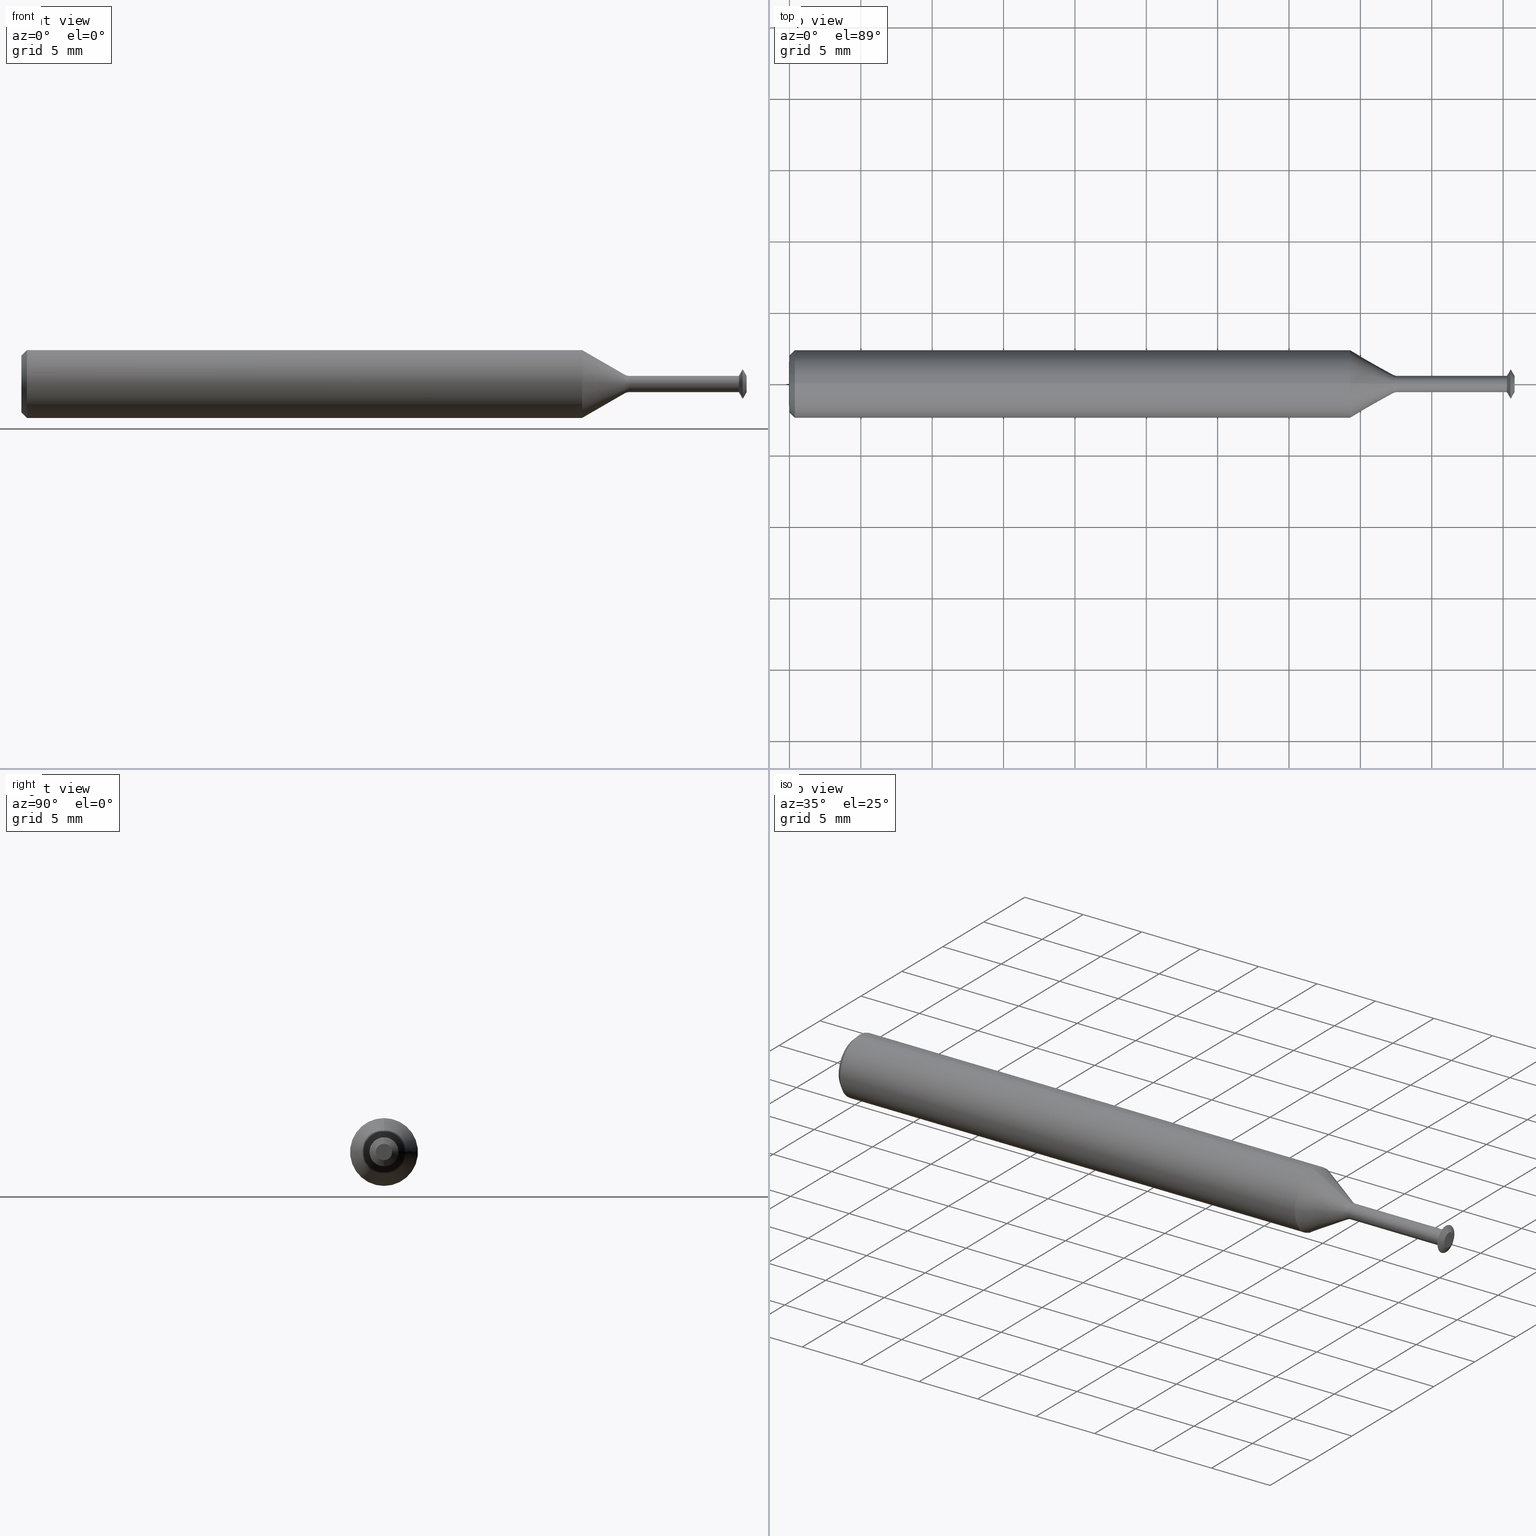
[diagram: canonical four-view strip — front | top / right | iso, engineering-drawing reading convention]
A machine part, canonical four-view strip (front | top / right | iso — engineering-drawing reading convention). The complete STEP part file that produces these views, byte-faithful:
ISO-10303-21;
HEADER;
FILE_DESCRIPTION (( 'STEP AP214' ),
    '1' );
FILE_NAME ('SPTM080L.STEP',
    '2019-04-02T22:13:54',
    ( '' ),
    ( '' ),
    'SwSTEP 2.0',
    'SolidWorks 2018',
    '' );
FILE_SCHEMA (( 'AUTOMOTIVE_DESIGN' ));
ENDSEC;

DATA;
#1 = VECTOR ( 'NONE', #210, 39.37007874015748143 ) ;
#2 = DIRECTION ( 'NONE',  ( 0.0000000000000000000, 0.0000000000000000000, 1.000000000000000000 ) ) ;
#3 = VERTEX_POINT ( 'NONE', #347 ) ;
#4 = VERTEX_POINT ( 'NONE', #109 ) ;
#5 = DIRECTION ( 'NONE',  ( -1.000000000000000000, -0.0000000000000000000, -0.0000000000000000000 ) ) ;
#6 = EDGE_CURVE ( 'NONE', #55, #3, #444, .T. ) ;
#7 = VERTEX_POINT ( 'NONE', #446 ) ;
#8 = AXIS2_PLACEMENT_3D ( 'NONE', #179, #207, #501 ) ;
#9 = VECTOR ( 'NONE', #398, 39.37007874015748143 ) ;
#10 = CYLINDRICAL_SURFACE ( 'NONE', #240, 0.02249999999999965916 ) ;
#11 = EDGE_CURVE ( 'NONE', #7, #259, #232, .T. ) ;
#12 = DIRECTION ( 'NONE',  ( 0.0000000000000000000, 0.0000000000000000000, 1.000000000000000000 ) ) ;
#13 = CARTESIAN_POINT ( 'NONE',  ( 2.000000000000000000, 3.827021247335434091E-18, -0.02249999999999964181 ) ) ;
#14 = DIRECTION ( 'NONE',  ( 0.0000000000000000000, 0.0000000000000000000, -1.000000000000000000 ) ) ;
#15 = AXIS2_PLACEMENT_3D ( 'NONE', #61, #472, #454 ) ;
#16 = DIRECTION ( 'NONE',  ( -1.000000000000000000, -0.0000000000000000000, -0.0000000000000000000 ) ) ;
#17 = FACE_OUTER_BOUND ( 'NONE', #399, .T. ) ;
#18 =( NAMED_UNIT ( * ) PLANE_ANGLE_UNIT ( ) SI_UNIT ( $, .RADIAN. ) );
#19 = ORIENTED_EDGE ( 'NONE', *, *, #156, .F. ) ;
#20 = SURFACE_STYLE_FILL_AREA ( #412 ) ;
#21 = VECTOR ( 'NONE', #276, 39.37007874015748143 ) ;
#22 = DIRECTION ( 'NONE',  ( 1.000000000000000000, 0.0000000000000000000, 0.0000000000000000000 ) ) ;
#23 = DIRECTION ( 'NONE',  ( -1.000000000000000000, -0.0000000000000000000, -0.0000000000000000000 ) ) ;
#24 = CARTESIAN_POINT ( 'NONE',  ( 2.000000000000000000, 0.0000000000000000000, 0.0000000000000000000 ) ) ;
#25 = CARTESIAN_POINT ( 'NONE',  ( 0.0000000000000000000, 0.0000000000000000000, 0.02249999999999965916 ) ) ;
#26 = ORIENTED_EDGE ( 'NONE', *, *, #29, .F. ) ;
#27 = DIMENSIONAL_EXPONENTS ( 1.000000000000000000, 0.0000000000000000000, 0.0000000000000000000, 0.0000000000000000000, 0.0000000000000000000, 0.0000000000000000000, 0.0000000000000000000 ) ;
#28 = DIRECTION ( 'NONE',  ( 0.0000000000000000000, 0.0000000000000000000, 1.000000000000000000 ) ) ;
#29 = EDGE_CURVE ( 'NONE', #370, #386, #484, .T. ) ;
#30 = AXIS2_PLACEMENT_3D ( 'NONE', #24, #73, #291 ) ;
#31 = FACE_OUTER_BOUND ( 'NONE', #262, .T. ) ;
#32 = CYLINDRICAL_SURFACE ( 'NONE', #56, 0.02249999999999965916 ) ;
#33 = CARTESIAN_POINT ( 'NONE',  ( 1.988957364759241564, 0.0000000000000000000, 0.0000000000000000000 ) ) ;
#34 = ADVANCED_FACE ( 'NONE', ( #185 ), #251, .F. ) ;
#35 = CARTESIAN_POINT ( 'NONE',  ( 1.676156094570019572, 0.0000000000000000000, 0.0000000000000000000 ) ) ;
#36 = EDGE_LOOP ( 'NONE', ( #368, #400, #151, #465 ) ) ;
#37 = CARTESIAN_POINT ( 'NONE',  ( 0.0000000000000000000, 0.0000000000000000000, 0.0000000000000000000 ) ) ;
#38 = ORIENTED_EDGE ( 'NONE', *, *, #314, .F. ) ;
#39 = DIRECTION ( 'NONE',  ( -1.000000000000000000, 0.0000000000000000000, -0.0000000000000000000 ) ) ;
#40 = ADVANCED_FACE ( 'NONE', ( #385 ), #490, .T. ) ;
#41 = EDGE_CURVE ( 'NONE', #259, #194, #362, .T. ) ;
#42 = DIRECTION ( 'NONE',  ( -0.8660254037844379305, 0.0000000000000000000, 0.5000000000000009992 ) ) ;
#43 = SURFACE_SIDE_STYLE ('',( #58 ) ) ;
#44 = VECTOR ( 'NONE', #488, 39.37007874015748143 ) ;
#45 = DIRECTION ( 'NONE',  ( -1.000000000000000000, -0.0000000000000000000, -0.0000000000000000000 ) ) ;
#46 = EDGE_CURVE ( 'NONE', #55, #164, #116, .T. ) ;
#47 = ADVANCED_FACE ( 'NONE', ( #410 ), #152, .F. ) ;
#48 = DIRECTION ( 'NONE',  ( -0.0000000000000000000, 1.000000000000000000, 1.224646799147353207E-16 ) ) ;
#49 = DIRECTION ( 'NONE',  ( -1.000000000000000000, -0.0000000000000000000, -0.0000000000000000000 ) ) ;
#50 = AXIS2_PLACEMENT_3D ( 'NONE', #256, #57, #203 ) ;
#51 = DIRECTION ( 'NONE',  ( 0.0000000000000000000, 0.0000000000000000000, 1.000000000000000000 ) ) ;
#52 = DIRECTION ( 'NONE',  ( 0.0000000000000000000, 0.0000000000000000000, 1.000000000000000000 ) ) ;
#53 = EDGE_CURVE ( 'NONE', #386, #476, #171, .T. ) ;
#54 = DIRECTION ( 'NONE',  ( -1.000000000000000000, -0.0000000000000000000, -0.0000000000000000000 ) ) ;
#55 = VERTEX_POINT ( 'NONE', #114 ) ;
#56 = AXIS2_PLACEMENT_3D ( 'NONE', #37, #192, #341 ) ;
#57 = DIRECTION ( 'NONE',  ( 1.000000000000000000, 0.0000000000000000000, 0.0000000000000000000 ) ) ;
#58 = SURFACE_STYLE_FILL_AREA ( #335 ) ;
#59 = DIRECTION ( 'NONE',  ( 0.4977310399126141371, 1.062174661273175141E-16, 0.8673314314075719622 ) ) ;
#60 = DIRECTION ( 'NONE',  ( 0.0000000000000000000, 0.0000000000000000000, 1.000000000000000000 ) ) ;
#61 = CARTESIAN_POINT ( 'NONE',  ( 0.0000000000000000000, 0.0000000000000000000, 0.0000000000000000000 ) ) ;
#62 = CYLINDRICAL_SURFACE ( 'NONE', #8, 0.03999999999999963307 ) ;
#63 = ADVANCED_FACE ( 'NONE', ( #328 ), #62, .T. ) ;
#64 = EDGE_CURVE ( 'NONE', #348, #193, #478, .T. ) ;
#65 = ADVANCED_FACE ( 'NONE', ( #183 ), #377, .T. ) ;
#66 = CARTESIAN_POINT ( 'NONE',  ( 0.0000000000000000000, 0.0000000000000000000, 0.03999999999999963307 ) ) ;
#67 = ADVANCED_FACE ( 'NONE', ( #352 ), #467, .T. ) ;
#68 = DIRECTION ( 'NONE',  ( -1.000000000000000000, -0.0000000000000000000, -0.0000000000000000000 ) ) ;
#69 = DIRECTION ( 'NONE',  ( -1.000000000000000000, -0.0000000000000000000, -0.0000000000000000000 ) ) ;
#70 = ADVANCED_FACE ( 'NONE', ( #242 ), #32, .T. ) ;
#71 = DIRECTION ( 'NONE',  ( 1.000000000000000000, 0.0000000000000000000, 0.0000000000000000000 ) ) ;
#72 = LINE ( 'NONE', #217, #1 ) ;
#73 = DIRECTION ( 'NONE',  ( -1.000000000000000000, -0.0000000000000000000, -0.0000000000000000000 ) ) ;
#74 = ORIENTED_EDGE ( 'NONE', *, *, #53, .T. ) ;
#75 = LINE ( 'NONE', #402, #44 ) ;
#76 = AXIS2_PLACEMENT_3D ( 'NONE', #440, #271, #265 ) ;
#77 = ORIENTED_EDGE ( 'NONE', *, *, #418, .F. ) ;
#78 =( CONVERSION_BASED_UNIT ( 'INCH', #387 ) LENGTH_UNIT ( ) NAMED_UNIT ( #27 ) );
#79 = TOROIDAL_SURFACE ( 'NONE', #138, 0.04749999999999963279, 0.02499999999999994588 ) ;
#80 = MANIFOLD_SOLID_BREP ( 'F520BA77-B374-43fe-96ED-109354F2E196-GAAFaceID9', #81 ) ;
#81 = CLOSED_SHELL ( 'NONE', ( #414, #67, #65, #34, #105, #106, #63, #123, #47, #129, #40, #82, #70, #99, #86, #459, #244, #128 ) ) ;
#82 = ADVANCED_FACE ( 'NONE', ( #31 ), #191, .T. ) ;
#83 = EDGE_CURVE ( 'NONE', #4, #370, #332, .T. ) ;
#84 = CIRCLE ( 'NONE', #429, 0.09360000000000001652 ) ;
#85 = AXIS2_PLACEMENT_3D ( 'NONE', #460, #45, #12 ) ;
#86 = ADVANCED_FACE ( 'NONE', ( #308 ), #483, .T. ) ;
#87 = EDGE_LOOP ( 'NONE', ( #263, #396, #107, #130 ) ) ;
#88 = CARTESIAN_POINT ( 'NONE',  ( 0.0000000000000000000, 0.0000000000000000000, 0.0000000000000000000 ) ) ;
#89 = APPLICATION_CONTEXT ( 'automotive_design' ) ;
#90 = DIRECTION ( 'NONE',  ( -1.000000000000000000, -0.0000000000000000000, -0.0000000000000000000 ) ) ;
#91 = AXIS2_PLACEMENT_3D ( 'NONE', #260, #254, #391 ) ;
#92 = DIMENSIONAL_EXPONENTS ( 1.000000000000000000, 0.0000000000000000000, 0.0000000000000000000, 0.0000000000000000000, 0.0000000000000000000, 0.0000000000000000000, 0.0000000000000000000 ) ;
#93 = ORIENTED_EDGE ( 'NONE', *, *, #135, .T. ) ;
#94 = DIRECTION ( 'NONE',  ( 0.0000000000000000000, 0.0000000000000000000, 1.000000000000000000 ) ) ;
#95 = CIRCLE ( 'NONE', #325, 0.03999999999999963307 ) ;
#96 = DIMENSIONAL_EXPONENTS ( 1.000000000000000000, 0.0000000000000000000, 0.0000000000000000000, 0.0000000000000000000, 0.0000000000000000000, 0.0000000000000000000, 0.0000000000000000000 ) ;
#97 = DIRECTION ( 'NONE',  ( 0.0000000000000000000, -1.224646799147353207E-16, 1.000000000000000000 ) ) ;
#98 = ORIENTED_EDGE ( 'NONE', *, *, #200, .T. ) ;
#99 = ADVANCED_FACE ( 'NONE', ( #249 ), #79, .F. ) ;
#100 = CIRCLE ( 'NONE', #357, 0.03999999999999963307 ) ;
#101 = APPLICATION_PROTOCOL_DEFINITION ( 'draft international standard', 'automotive_design', 1998, #295 ) ;
#102 = UNCERTAINTY_MEASURE_WITH_UNIT (LENGTH_MEASURE( 1.000000000000000082E-05 ), #78, 'distance_accuracy_value', 'NONE');
#103 = DIRECTION ( 'NONE',  ( -1.000000000000000000, -0.0000000000000000000, -0.0000000000000000000 ) ) ;
#104 = EDGE_CURVE ( 'NONE', #259, #7, #286, .T. ) ;
#105 = ADVANCED_FACE ( 'NONE', ( #294 ), #10, .T. ) ;
#106 = ADVANCED_FACE ( 'NONE', ( #17 ), #274, .T. ) ;
#107 = ORIENTED_EDGE ( 'NONE', *, *, #64, .T. ) ;
#108 = DIRECTION ( 'NONE',  ( 0.7071067811865551223, 8.659560562354836716E-17, 0.7071067811865398012 ) ) ;
#109 = CARTESIAN_POINT ( 'NONE',  ( 2.000000000000000000, 0.0000000000000000000, 0.02249999999999964181 ) ) ;
#110 = PRESENTATION_LAYER_ASSIGNMENT (  '', '', ( #278 ) ) ;
#111 = EDGE_LOOP ( 'NONE', ( #137, #279 ) ) ;
#112 = CARTESIAN_POINT ( 'NONE',  ( 1.988957364759241564, 4.898587196589368085E-18, -0.03999999999999963307 ) ) ;
#113 = CIRCLE ( 'NONE', #170, 0.07860000000000036402 ) ;
#114 = CARTESIAN_POINT ( 'NONE',  ( 1.663656094570019617, 0.0000000000000000000, 0.02584936490538871506 ) ) ;
#115 = EDGE_CURVE ( 'NONE', #353, #164, #383, .T. ) ;
#116 = CIRCLE ( 'NONE', #91, 0.02499999999999994588 ) ;
#117 = DIRECTION ( 'NONE',  ( 0.0000000000000000000, 0.0000000000000000000, 1.000000000000000000 ) ) ;
#118 = ORIENTED_EDGE ( 'NONE', *, *, #314, .T. ) ;
#119 = ORIENTED_EDGE ( 'NONE', *, *, #182, .T. ) ;
#120 = CARTESIAN_POINT ( 'NONE',  ( 1.978914729518483684, 0.0000000000000000000, 0.0000000000000000000 ) ) ;
#121 = AXIS2_PLACEMENT_3D ( 'NONE', #122, #346, #303 ) ;
#122 = CARTESIAN_POINT ( 'NONE',  ( 1.978914729518483684, 0.0000000000000000000, 0.0000000000000000000 ) ) ;
#123 = ADVANCED_FACE ( 'NONE', ( #326 ), #401, .T. ) ;
#124 = PRESENTATION_STYLE_ASSIGNMENT (( #125 ) ) ;
#125 = SURFACE_STYLE_USAGE ( .BOTH. , #43 ) ;
#126 = ORIENTED_EDGE ( 'NONE', *, *, #174, .T. ) ;
#127 = DIRECTION ( 'NONE',  ( 0.0000000000000000000, 0.0000000000000000000, 1.000000000000000000 ) ) ;
#128 = ADVANCED_FACE ( 'NONE', ( #300 ), #493, .T. ) ;
#129 = ADVANCED_FACE ( 'NONE', ( #264 ), #499, .T. ) ;
#130 = ORIENTED_EDGE ( 'NONE', *, *, #174, .F. ) ;
#131 = EDGE_CURVE ( 'NONE', #7, #269, #481, .T. ) ;
#132 = ORIENTED_EDGE ( 'NONE', *, *, #237, .F. ) ;
#133 = DIRECTION ( 'NONE',  ( -1.000000000000000000, -0.0000000000000000000, -0.0000000000000000000 ) ) ;
#134 = ORIENTED_EDGE ( 'NONE', *, *, #41, .T. ) ;
#135 = EDGE_CURVE ( 'NONE', #4, #476, #75, .T. ) ;
#136 = CARTESIAN_POINT ( 'NONE',  ( 0.0000000000000000000, 0.0000000000000000000, -0.07860000000000036402 ) ) ;
#137 = ORIENTED_EDGE ( 'NONE', *, *, #491, .T. ) ;
#138 = AXIS2_PLACEMENT_3D ( 'NONE', #355, #289, #117 ) ;
#139 = CARTESIAN_POINT ( 'NONE',  ( 0.0000000000000000000, 0.0000000000000000000, 0.0000000000000000000 ) ) ;
#140 = DIRECTION ( 'NONE',  ( 0.0000000000000000000, 0.0000000000000000000, 1.000000000000000000 ) ) ;
#141 = ORIENTED_EDGE ( 'NONE', *, *, #83, .F. ) ;
#142 = CONICAL_SURFACE ( 'NONE', #384, 0.07860000000000036402, 0.7853981633974375098 ) ;
#143 = ORIENTED_EDGE ( 'NONE', *, *, #336, .F. ) ;
#144 = EDGE_CURVE ( 'NONE', #370, #4, #202, .T. ) ;
#145 = CARTESIAN_POINT ( 'NONE',  ( 1.676156094570019572, 5.817072295949882498E-18, -0.04749999999999963279 ) ) ;
#146 = CIRCLE ( 'NONE', #361, 0.02584936490538874629 ) ;
#147 = CARTESIAN_POINT ( 'NONE',  ( 1.663656094570019617, 0.0000000000000000000, 0.0000000000000000000 ) ) ;
#148 = EDGE_CURVE ( 'NONE', #188, #225, #180, .T. ) ;
#149 = LINE ( 'NONE', #215, #442 ) ;
#150 = CARTESIAN_POINT ( 'NONE',  ( 1.546308552341094211, 0.0000000000000000000, 0.0000000000000000000 ) ) ;
#151 = ORIENTED_EDGE ( 'NONE', *, *, #301, .T. ) ;
#152 = PLANE ( 'NONE',  #224 ) ;
#153 = DIRECTION ( 'NONE',  ( 0.0000000000000000000, 0.0000000000000000000, 1.000000000000000000 ) ) ;
#154 = ORIENTED_EDGE ( 'NONE', *, *, #144, .T. ) ;
#155 = FACE_OUTER_BOUND ( 'NONE', #463, .T. ) ;
#156 = EDGE_CURVE ( 'NONE', #395, #3, #229, .T. ) ;
#157 = EDGE_LOOP ( 'NONE', ( #221, #132, #457, #313 ) ) ;
#158 = VECTOR ( 'NONE', #42, 39.37007874015748854 ) ;
#159 = EDGE_CURVE ( 'NONE', #476, #386, #407, .T. ) ;
#160 = CARTESIAN_POINT ( 'NONE',  ( 1.663656094570019617, 0.0000000000000000000, 0.0000000000000000000 ) ) ;
#161 = VECTOR ( 'NONE', #296, 39.37007874015748143 ) ;
#162 =( NAMED_UNIT ( * ) SI_UNIT ( $, .STERADIAN. ) SOLID_ANGLE_UNIT ( ) );
#163 = CARTESIAN_POINT ( 'NONE',  ( 1.663656094570019617, 0.0000000000000000000, 0.02584936490538874629 ) ) ;
#164 = VERTEX_POINT ( 'NONE', #430 ) ;
#165 = EDGE_LOOP ( 'NONE', ( #38, #197, #318, #238 ) ) ;
#166 = DIRECTION ( 'NONE',  ( 0.0000000000000000000, 0.0000000000000000000, -1.000000000000000000 ) ) ;
#167 = EDGE_CURVE ( 'NONE', #386, #194, #338, .T. ) ;
#168 = FILL_AREA_STYLE_COLOUR ( '', #393 ) ;
#169 = EDGE_LOOP ( 'NONE', ( #456, #119, #268, #431 ) ) ;
#170 = AXIS2_PLACEMENT_3D ( 'NONE', #299, #69, #316 ) ;
#171 = CIRCLE ( 'NONE', #310, 0.03999999999999963307 ) ;
#172 = ORIENTED_EDGE ( 'NONE', *, *, #331, .T. ) ;
#173 = DIRECTION ( 'NONE',  ( 0.0000000000000000000, 0.0000000000000000000, -1.000000000000000000 ) ) ;
#174 = EDGE_CURVE ( 'NONE', #225, #193, #411, .T. ) ;
#175 = EDGE_CURVE ( 'NONE', #476, #269, #246, .T. ) ;
#176 = DIRECTION ( 'NONE',  ( -1.000000000000000000, -0.0000000000000000000, -0.0000000000000000000 ) ) ;
#177 = CARTESIAN_POINT ( 'NONE',  ( 1.988957364759241564, 0.0000000000000000000, 0.0000000000000000000 ) ) ;
#178 = CARTESIAN_POINT ( 'NONE',  ( 0.0000000000000000000, 0.0000000000000000000, 0.0000000000000000000 ) ) ;
#179 = CARTESIAN_POINT ( 'NONE',  ( 0.0000000000000000000, 0.0000000000000000000, 0.0000000000000000000 ) ) ;
#180 = LINE ( 'NONE', #284, #356 ) ;
#181 = DIRECTION ( 'NONE',  ( 0.0000000000000000000, 0.0000000000000000000, -1.000000000000000000 ) ) ;
#182 = EDGE_CURVE ( 'NONE', #363, #353, #475, .T. ) ;
#183 = FACE_OUTER_BOUND ( 'NONE', #243, .T. ) ;
#184 = EDGE_LOOP ( 'NONE', ( #435, #492, #98, #126 ) ) ;
#185 = FACE_OUTER_BOUND ( 'NONE', #169, .T. ) ;
#186 = DIRECTION ( 'NONE',  ( -1.000000000000000000, -0.0000000000000000000, -0.0000000000000000000 ) ) ;
#187 = PRODUCT_DEFINITION_SHAPE ( 'NONE', 'NONE',  #389 ) ;
#188 = VERTEX_POINT ( 'NONE', #222 ) ;
#189 = ORIENTED_EDGE ( 'NONE', *, *, #331, .F. ) ;
#190 = AXIS2_PLACEMENT_3D ( 'NONE', #88, #439, #14 ) ;
#191 = CONICAL_SURFACE ( 'NONE', #266, 0.03999999999999963307, 1.049815545074586964 ) ;
#192 = DIRECTION ( 'NONE',  ( -1.000000000000000000, -0.0000000000000000000, -0.0000000000000000000 ) ) ;
#193 = VERTEX_POINT ( 'NONE', #267 ) ;
#194 = VERTEX_POINT ( 'NONE', #112 ) ;
#195 =( CONVERSION_BASED_UNIT ( 'INCH', #388 ) LENGTH_UNIT ( ) NAMED_UNIT ( #96 ) );
#196 = CARTESIAN_POINT ( 'NONE',  ( 1.988957364759241564, 0.0000000000000000000, -0.03999999999999963307 ) ) ;
#197 = ORIENTED_EDGE ( 'NONE', *, *, #104, .T. ) ;
#198 = LINE ( 'NONE', #25, #21 ) ;
#199 = EDGE_LOOP ( 'NONE', ( #219, #458, #189, #320 ) ) ;
#200 = EDGE_CURVE ( 'NONE', #3, #225, #149, .T. ) ;
#201 = SHAPE_DEFINITION_REPRESENTATION ( #187, #349 ) ;
#202 = CIRCLE ( 'NONE', #423, 0.02249999999999964181 ) ;
#203 = DIRECTION ( 'NONE',  ( 0.0000000000000000000, 0.0000000000000000000, -1.000000000000000000 ) ) ;
#204 = ORIENTED_EDGE ( 'NONE', *, *, #175, .T. ) ;
#205 = CARTESIAN_POINT ( 'NONE',  ( 1.988957364759241564, 0.0000000000000000000, 0.0000000000000000000 ) ) ;
#206 = CARTESIAN_POINT ( 'NONE',  ( 0.01499999999999997863, 0.0000000000000000000, 0.0000000000000000000 ) ) ;
#207 = DIRECTION ( 'NONE',  ( -1.000000000000000000, -0.0000000000000000000, -0.0000000000000000000 ) ) ;
#208 = EDGE_CURVE ( 'NONE', #363, #395, #298, .T. ) ;
#209 = ORIENTED_EDGE ( 'NONE', *, *, #11, .T. ) ;
#210 = DIRECTION ( 'NONE',  ( -1.000000000000000000, -0.0000000000000000000, -0.0000000000000000000 ) ) ;
#211 = AXIS2_PLACEMENT_3D ( 'NONE', #406, #390, #354 ) ;
#212 = CARTESIAN_POINT ( 'NONE',  ( 1.989957364759241898, 0.0000000000000000000, 0.0000000000000000000 ) ) ;
#213 = PRESENTATION_STYLE_ASSIGNMENT (( #364 ) ) ;
#214 = PRODUCT ( 'SPTM080L', 'SPTM080L', '', ( #469 ) ) ;
#215 = CARTESIAN_POINT ( 'NONE',  ( 0.0000000000000000000, 0.0000000000000000000, 0.09360000000000001652 ) ) ;
#216 = CIRCLE ( 'NONE', #403, 0.02584936490538874629 ) ;
#217 = CARTESIAN_POINT ( 'NONE',  ( 0.0000000000000000000, 2.755455298081503178E-18, -0.02249999999999965916 ) ) ;
#218 = AXIS2_PLACEMENT_3D ( 'NONE', #495, #90, #285 ) ;
#219 = ORIENTED_EDGE ( 'NONE', *, *, #159, .T. ) ;
#220 = DIRECTION ( 'NONE',  ( 0.0000000000000000000, 0.0000000000000000000, 1.000000000000000000 ) ) ;
#221 = ORIENTED_EDGE ( 'NONE', *, *, #182, .F. ) ;
#222 = CARTESIAN_POINT ( 'NONE',  ( 0.0000000000000000000, 1.054420894065873337E-17, 0.07860000000000036402 ) ) ;
#223 = DIRECTION ( 'NONE',  ( -0.8660254037844379305, 6.123233995736778362E-17, -0.5000000000000009992 ) ) ;
#224 = AXIS2_PLACEMENT_3D ( 'NONE', #257, #39, #379 ) ;
#225 = VERTEX_POINT ( 'NONE', #447 ) ;
#226 = CARTESIAN_POINT ( 'NONE',  ( 1.988957364759241564, 0.0000000000000000000, 0.03999999999999963307 ) ) ;
#227 = ORIENTED_EDGE ( 'NONE', *, *, #64, .F. ) ;
#228 = CARTESIAN_POINT ( 'NONE',  ( 0.01499999999999997863, 0.0000000000000000000, 0.0000000000000000000 ) ) ;
#229 = CIRCLE ( 'NONE', #211, 0.09360000000000001652 ) ;
#230 = ORIENTED_EDGE ( 'NONE', *, *, #301, .F. ) ;
#231 = ORIENTED_EDGE ( 'NONE', *, *, #131, .T. ) ;
#232 = CIRCLE ( 'NONE', #121, 0.02249999999999963141 ) ;
#233 = PLANE ( 'NONE',  #337 ) ;
#234 = DIRECTION ( 'NONE',  ( 0.0000000000000000000, 0.0000000000000000000, -1.000000000000000000 ) ) ;
#235 = EDGE_LOOP ( 'NONE', ( #282, #376, #350, #452 ) ) ;
#236 = DIRECTION ( 'NONE',  ( 1.000000000000000000, 0.0000000000000000000, 0.0000000000000000000 ) ) ;
#237 = EDGE_CURVE ( 'NONE', #55, #363, #216, .T. ) ;
#238 = ORIENTED_EDGE ( 'NONE', *, *, #115, .F. ) ;
#239 = DIRECTION ( 'NONE',  ( -1.000000000000000000, -0.0000000000000000000, -0.0000000000000000000 ) ) ;
#240 = AXIS2_PLACEMENT_3D ( 'NONE', #375, #5, #220 ) ;
#241 = CARTESIAN_POINT ( 'NONE',  ( 0.0000000000000000000, 0.0000000000000000000, 0.0000000000000000000 ) ) ;
#242 = FACE_OUTER_BOUND ( 'NONE', #165, .T. ) ;
#243 = EDGE_LOOP ( 'NONE', ( #413, #450, #448, #250 ) ) ;
#244 = ADVANCED_FACE ( 'NONE', ( #305 ), #233, .F. ) ;
#245 = ORIENTED_EDGE ( 'NONE', *, *, #41, .F. ) ;
#246 = LINE ( 'NONE', #66, #453 ) ;
#247 = PRODUCT_RELATED_PRODUCT_CATEGORY ( 'part', '', ( #214 ) ) ;
#248 = DIRECTION ( 'NONE',  ( 0.4977310399126141371, 0.0000000000000000000, -0.8673314314075719622 ) ) ;
#249 = FACE_OUTER_BOUND ( 'NONE', #157, .T. ) ;
#250 = ORIENTED_EDGE ( 'NONE', *, *, #6, .F. ) ;
#251 = TOROIDAL_SURFACE ( 'NONE', #218, 0.04749999999999963279, 0.02499999999999994588 ) ;
#252 = AXIS2_PLACEMENT_3D ( 'NONE', #272, #489, #253 ) ;
#253 = DIRECTION ( 'NONE',  ( 0.0000000000000000000, 0.0000000000000000000, 1.000000000000000000 ) ) ;
#254 = DIRECTION ( 'NONE',  ( 0.0000000000000000000, -1.000000000000000000, 0.0000000000000000000 ) ) ;
#255 = DIRECTION ( 'NONE',  ( 1.000000000000000000, 0.0000000000000000000, 0.0000000000000000000 ) ) ;
#256 = CARTESIAN_POINT ( 'NONE',  ( 1.988957364759241564, 0.0000000000000000000, 0.0000000000000000000 ) ) ;
#257 = CARTESIAN_POINT ( 'NONE',  ( 2.000000000000000000, 0.02249999999999964181, 0.0000000000000000000 ) ) ;
#258 = COLOUR_RGB ( '',0.7529411764705882248, 0.7529411764705882248, 0.7529411764705882248 ) ;
#259 = VERTEX_POINT ( 'NONE', #497 ) ;
#260 = CARTESIAN_POINT ( 'NONE',  ( 1.676156094570019572, 0.0000000000000000000, 0.04749999999999963279 ) ) ;
#261 = MECHANICAL_DESIGN_GEOMETRIC_PRESENTATION_REPRESENTATION (  '', ( #378 ), #369 ) ;
#262 = EDGE_LOOP ( 'NONE', ( #464, #468, #134, #427 ) ) ;
#263 = ORIENTED_EDGE ( 'NONE', *, *, #148, .F. ) ;
#264 = FACE_OUTER_BOUND ( 'NONE', #273, .T. ) ;
#265 = DIRECTION ( 'NONE',  ( 0.0000000000000000000, 0.0000000000000000000, 1.000000000000000000 ) ) ;
#266 = AXIS2_PLACEMENT_3D ( 'NONE', #205, #351, #473 ) ;
#267 = CARTESIAN_POINT ( 'NONE',  ( 0.01499999999999997863, 1.146269404001922775E-17, -0.09360000000000001652 ) ) ;
#268 = ORIENTED_EDGE ( 'NONE', *, *, #115, .T. ) ;
#269 = VERTEX_POINT ( 'NONE', #226 ) ;
#270 = EDGE_CURVE ( 'NONE', #164, #353, #366, .T. ) ;
#271 = DIRECTION ( 'NONE',  ( -1.000000000000000000, -0.0000000000000000000, -0.0000000000000000000 ) ) ;
#272 = CARTESIAN_POINT ( 'NONE',  ( 1.663656094570019617, 0.0000000000000000000, 0.0000000000000000000 ) ) ;
#273 = EDGE_LOOP ( 'NONE', ( #26, #154, #93, #319 ) ) ;
#274 = CONICAL_SURFACE ( 'NONE', #50, 0.03999999999999963307, 1.049815545074586964 ) ;
#275 = CARTESIAN_POINT ( 'NONE',  ( 2.000000000000000000, 2.755455298081500481E-18, -0.02249999999999964181 ) ) ;
#276 = DIRECTION ( 'NONE',  ( -1.000000000000000000, -0.0000000000000000000, -0.0000000000000000000 ) ) ;
#277 = DIRECTION ( 'NONE',  ( -1.000000000000000000, -0.0000000000000000000, -0.0000000000000000000 ) ) ;
#278 = STYLED_ITEM ( 'NONE', ( #124 ), #349 ) ;
#279 = ORIENTED_EDGE ( 'NONE', *, *, #290, .T. ) ;
#280 = DIRECTION ( 'NONE',  ( 0.0000000000000000000, 0.0000000000000000000, 1.000000000000000000 ) ) ;
#281 = ORIENTED_EDGE ( 'NONE', *, *, #485, .T. ) ;
#282 = ORIENTED_EDGE ( 'NONE', *, *, #83, .T. ) ;
#283 = MECHANICAL_DESIGN_GEOMETRIC_PRESENTATION_REPRESENTATION (  '', ( #278 ), #372 ) ;
#284 = CARTESIAN_POINT ( 'NONE',  ( 0.0000000000000000000, 9.625723841298240530E-18, 0.07860000000000036402 ) ) ;
#285 = DIRECTION ( 'NONE',  ( 0.0000000000000000000, 0.0000000000000000000, 1.000000000000000000 ) ) ;
#286 = CIRCLE ( 'NONE', #342, 0.02249999999999963141 ) ;
#287 = DIRECTION ( 'NONE',  ( 0.0000000000000000000, 0.0000000000000000000, -1.000000000000000000 ) ) ;
#288 = ORIENTED_EDGE ( 'NONE', *, *, #208, .F. ) ;
#289 = DIRECTION ( 'NONE',  ( -1.000000000000000000, -0.0000000000000000000, -0.0000000000000000000 ) ) ;
#290 = EDGE_CURVE ( 'NONE', #188, #348, #415, .T. ) ;
#291 = DIRECTION ( 'NONE',  ( 0.0000000000000000000, 0.0000000000000000000, 1.000000000000000000 ) ) ;
#292 = DIRECTION ( 'NONE',  ( 0.0000000000000000000, 0.0000000000000000000, 1.000000000000000000 ) ) ;
#293 = CARTESIAN_POINT ( 'NONE',  ( 0.0000000000000000000, 1.146269404001922775E-17, -0.09360000000000001652 ) ) ;
#294 = FACE_OUTER_BOUND ( 'NONE', #344, .T. ) ;
#295 = APPLICATION_CONTEXT ( 'automotive_design' ) ;
#296 = DIRECTION ( 'NONE',  ( -1.000000000000000000, -0.0000000000000000000, -0.0000000000000000000 ) ) ;
#297 = AXIS2_PLACEMENT_3D ( 'NONE', #241, #239, #234 ) ;
#298 = LINE ( 'NONE', #371, #445 ) ;
#299 = CARTESIAN_POINT ( 'NONE',  ( 0.0000000000000000000, 0.0000000000000000000, 0.0000000000000000000 ) ) ;
#300 = FACE_OUTER_BOUND ( 'NONE', #87, .T. ) ;
#301 = EDGE_CURVE ( 'NONE', #193, #225, #84, .T. ) ;
#302 =( CONVERSION_BASED_UNIT ( 'INCH', #455 ) LENGTH_UNIT ( ) NAMED_UNIT ( #92 ) );
#303 = DIRECTION ( 'NONE',  ( 0.0000000000000000000, 0.0000000000000000000, 1.000000000000000000 ) ) ;
#304 = DIRECTION ( 'NONE',  ( 0.0000000000000000000, 0.0000000000000000000, 1.000000000000000000 ) ) ;
#305 = FACE_OUTER_BOUND ( 'NONE', #111, .T. ) ;
#306 = FACE_OUTER_BOUND ( 'NONE', #184, .T. ) ;
#307 =( NAMED_UNIT ( * ) PLANE_ANGLE_UNIT ( ) SI_UNIT ( $, .RADIAN. ) );
#308 = FACE_OUTER_BOUND ( 'NONE', #479, .T. ) ;
#309 =( LENGTH_UNIT ( ) NAMED_UNIT ( * ) SI_UNIT ( $, .METRE. ) );
#310 = AXIS2_PLACEMENT_3D ( 'NONE', #212, #49, #2 ) ;
#311 = CARTESIAN_POINT ( 'NONE',  ( 1.989957364759241898, 0.0000000000000000000, 0.03999999999999963307 ) ) ;
#312 = SURFACE_SIDE_STYLE ('',( #20 ) ) ;
#313 = ORIENTED_EDGE ( 'NONE', *, *, #270, .T. ) ;
#314 = EDGE_CURVE ( 'NONE', #259, #353, #72, .T. ) ;
#315 = VECTOR ( 'NONE', #449, 39.37007874015748854 ) ;
#316 = DIRECTION ( 'NONE',  ( 0.0000000000000000000, 0.0000000000000000000, -1.000000000000000000 ) ) ;
#317 =( NAMED_UNIT ( * ) PLANE_ANGLE_UNIT ( ) SI_UNIT ( $, .RADIAN. ) );
#318 = ORIENTED_EDGE ( 'NONE', *, *, #336, .T. ) ;
#319 = ORIENTED_EDGE ( 'NONE', *, *, #53, .F. ) ;
#320 = ORIENTED_EDGE ( 'NONE', *, *, #175, .F. ) ;
#321 = CARTESIAN_POINT ( 'NONE',  ( 1.989957364759241898, 0.0000000000000000000, 0.0000000000000000000 ) ) ;
#322 =( NAMED_UNIT ( * ) SI_UNIT ( $, .STERADIAN. ) SOLID_ANGLE_UNIT ( ) );
#323 = AXIS2_PLACEMENT_3D ( 'NONE', #486, #103, #94 ) ;
#324 = APPLICATION_PROTOCOL_DEFINITION ( 'draft international standard', 'automotive_design', 1998, #89 ) ;
#325 = AXIS2_PLACEMENT_3D ( 'NONE', #177, #68, #60 ) ;
#326 = FACE_OUTER_BOUND ( 'NONE', #235, .T. ) ;
#327 = PRESENTATION_LAYER_ASSIGNMENT (  '', '', ( #378 ) ) ;
#328 = FACE_OUTER_BOUND ( 'NONE', #199, .T. ) ;
#329 = ORIENTED_EDGE ( 'NONE', *, *, #11, .F. ) ;
#330 =( LENGTH_UNIT ( ) NAMED_UNIT ( * ) SI_UNIT ( $, .METRE. ) );
#331 = EDGE_CURVE ( 'NONE', #269, #194, #100, .T. ) ;
#332 = CIRCLE ( 'NONE', #85, 0.02249999999999964181 ) ;
#333 =( NAMED_UNIT ( * ) SI_UNIT ( $, .STERADIAN. ) SOLID_ANGLE_UNIT ( ) );
#334 = DIRECTION ( 'NONE',  ( 0.0000000000000000000, 0.0000000000000000000, 1.000000000000000000 ) ) ;
#335 = FILL_AREA_STYLE ('',( #168 ) ) ;
#336 = EDGE_CURVE ( 'NONE', #7, #164, #198, .T. ) ;
#337 = AXIS2_PLACEMENT_3D ( 'NONE', #139, #71, #166 ) ;
#338 = LINE ( 'NONE', #404, #9 ) ;
#339 = AXIS2_PLACEMENT_3D ( 'NONE', #498, #280, #255 ) ;
#340 =( LENGTH_UNIT ( ) NAMED_UNIT ( * ) SI_UNIT ( $, .METRE. ) );
#341 = DIRECTION ( 'NONE',  ( 0.0000000000000000000, 0.0000000000000000000, 1.000000000000000000 ) ) ;
#342 = AXIS2_PLACEMENT_3D ( 'NONE', #120, #474, #51 ) ;
#343 = FILL_AREA_STYLE_COLOUR ( '', #258 ) ;
#344 = EDGE_LOOP ( 'NONE', ( #209, #118, #416, #143 ) ) ;
#345 = DIRECTION ( 'NONE',  ( -1.000000000000000000, -0.0000000000000000000, -0.0000000000000000000 ) ) ;
#346 = DIRECTION ( 'NONE',  ( -1.000000000000000000, -0.0000000000000000000, -0.0000000000000000000 ) ) ;
#347 = CARTESIAN_POINT ( 'NONE',  ( 1.546308552341094211, 0.0000000000000000000, 0.09360000000000001652 ) ) ;
#348 = VERTEX_POINT ( 'NONE', #494 ) ;
#349 = ADVANCED_BREP_SHAPE_REPRESENTATION ( 'SPTM080L', ( #80, #339 ), #438 ) ;
#350 = ORIENTED_EDGE ( 'NONE', *, *, #159, .F. ) ;
#351 = DIRECTION ( 'NONE',  ( 1.000000000000000000, 0.0000000000000000000, 0.0000000000000000000 ) ) ;
#352 = FACE_OUTER_BOUND ( 'NONE', #36, .T. ) ;
#353 = VERTEX_POINT ( 'NONE', #419 ) ;
#354 = DIRECTION ( 'NONE',  ( 0.0000000000000000000, 0.0000000000000000000, 1.000000000000000000 ) ) ;
#355 = CARTESIAN_POINT ( 'NONE',  ( 1.676156094570019572, 0.0000000000000000000, 0.0000000000000000000 ) ) ;
#356 = VECTOR ( 'NONE', #108, 39.37007874015748854 ) ;
#357 = AXIS2_PLACEMENT_3D ( 'NONE', #33, #358, #52 ) ;
#358 = DIRECTION ( 'NONE',  ( -1.000000000000000000, -0.0000000000000000000, -0.0000000000000000000 ) ) ;
#359 = DIRECTION ( 'NONE',  ( -1.000000000000000000, -0.0000000000000000000, -0.0000000000000000000 ) ) ;
#360 = VECTOR ( 'NONE', #471, 39.37007874015748143 ) ;
#361 = AXIS2_PLACEMENT_3D ( 'NONE', #147, #345, #292 ) ;
#362 = LINE ( 'NONE', #196, #373 ) ;
#363 = VERTEX_POINT ( 'NONE', #434 ) ;
#364 = SURFACE_STYLE_USAGE ( .BOTH. , #312 ) ;
#365 = EDGE_LOOP ( 'NONE', ( #141, #441 ) ) ;
#366 = CIRCLE ( 'NONE', #76, 0.02249999999999968345 ) ;
#367 = UNCERTAINTY_MEASURE_WITH_UNIT (LENGTH_MEASURE( 1.000000000000000082E-05 ), #302, 'distance_accuracy_value', 'NONE');
#368 = ORIENTED_EDGE ( 'NONE', *, *, #451, .T. ) ;
#369 =( GEOMETRIC_REPRESENTATION_CONTEXT ( 3 ) GLOBAL_UNCERTAINTY_ASSIGNED_CONTEXT ( ( #102 ) ) GLOBAL_UNIT_ASSIGNED_CONTEXT ( ( #78, #18, #162 ) ) REPRESENTATION_CONTEXT ( 'NONE', 'WORKASPACE' ) );
#370 = VERTEX_POINT ( 'NONE', #13 ) ;
#371 = CARTESIAN_POINT ( 'NONE',  ( 1.663656094570019617, 3.165634199137625534E-18, -0.02584936490538874629 ) ) ;
#372 =( GEOMETRIC_REPRESENTATION_CONTEXT ( 3 ) GLOBAL_UNCERTAINTY_ASSIGNED_CONTEXT ( ( #482 ) ) GLOBAL_UNIT_ASSIGNED_CONTEXT ( ( #195, #307, #333 ) ) REPRESENTATION_CONTEXT ( 'NONE', 'WORKASPACE' ) );
#373 = VECTOR ( 'NONE', #248, 39.37007874015748143 ) ;
#374 = CARTESIAN_POINT ( 'NONE',  ( 0.0000000000000000000, 0.0000000000000000000, 0.0000000000000000000 ) ) ;
#375 = CARTESIAN_POINT ( 'NONE',  ( 0.0000000000000000000, 0.0000000000000000000, 0.0000000000000000000 ) ) ;
#376 = ORIENTED_EDGE ( 'NONE', *, *, #29, .T. ) ;
#377 = CONICAL_SURFACE ( 'NONE', #480, 0.02584936490538874629, 0.5235987755983001479 ) ;
#378 = STYLED_ITEM ( 'NONE', ( #213 ), #80 ) ;
#379 = DIRECTION ( 'NONE',  ( -0.0000000000000000000, 0.0000000000000000000, 1.000000000000000000 ) ) ;
#380 = CARTESIAN_POINT ( 'NONE',  ( 1.546308552341094211, 1.146269404001922621E-17, -0.09360000000000001652 ) ) ;
#381 = AXIS2_PLACEMENT_3D ( 'NONE', #150, #133, #153 ) ;
#382 = PRODUCT_DEFINITION_CONTEXT ( 'detailed design', #295, 'design' ) ;
#383 = CIRCLE ( 'NONE', #409, 0.02249999999999968345 ) ;
#384 = AXIS2_PLACEMENT_3D ( 'NONE', #425, #236, #287 ) ;
#385 = FACE_OUTER_BOUND ( 'NONE', #428, .T. ) ;
#386 = VERTEX_POINT ( 'NONE', #437 ) ;
#387 = LENGTH_MEASURE_WITH_UNIT ( LENGTH_MEASURE( 0.02539999999999999897 ), #340 );
#388 = LENGTH_MEASURE_WITH_UNIT ( LENGTH_MEASURE( 0.02539999999999999897 ), #309 );
#389 = PRODUCT_DEFINITION ( 'UNKNOWN', '', #420, #382 ) ;
#390 = DIRECTION ( 'NONE',  ( -1.000000000000000000, -0.0000000000000000000, -0.0000000000000000000 ) ) ;
#391 = DIRECTION ( 'NONE',  ( 0.0000000000000000000, 0.0000000000000000000, -1.000000000000000000 ) ) ;
#392 = AXIS2_PLACEMENT_3D ( 'NONE', #145, #48, #97 ) ;
#393 = COLOUR_RGB ( '',0.7529411764705882248, 0.7529411764705882248, 0.7529411764705882248 ) ;
#394 = CARTESIAN_POINT ( 'NONE',  ( 1.988957364759241564, 4.898587196589368085E-18, 0.03999999999999963307 ) ) ;
#395 = VERTEX_POINT ( 'NONE', #380 ) ;
#396 = ORIENTED_EDGE ( 'NONE', *, *, #491, .F. ) ;
#397 = AXIS2_PLACEMENT_3D ( 'NONE', #178, #16, #426 ) ;
#398 = DIRECTION ( 'NONE',  ( -1.000000000000000000, -0.0000000000000000000, -0.0000000000000000000 ) ) ;
#399 = EDGE_LOOP ( 'NONE', ( #329, #231, #172, #245 ) ) ;
#400 = ORIENTED_EDGE ( 'NONE', *, *, #500, .T. ) ;
#401 = CONICAL_SURFACE ( 'NONE', #323, 0.02249999999999964181, 1.049815545074586742 ) ;
#402 = CARTESIAN_POINT ( 'NONE',  ( 2.000000000000000000, 0.0000000000000000000, 0.02249999999999964181 ) ) ;
#403 = AXIS2_PLACEMENT_3D ( 'NONE', #405, #23, #140 ) ;
#404 = CARTESIAN_POINT ( 'NONE',  ( 0.0000000000000000000, 4.898587196589368085E-18, -0.03999999999999963307 ) ) ;
#405 = CARTESIAN_POINT ( 'NONE',  ( 1.663656094570019617, 0.0000000000000000000, 0.0000000000000000000 ) ) ;
#406 = CARTESIAN_POINT ( 'NONE',  ( 1.546308552341094211, 0.0000000000000000000, 0.0000000000000000000 ) ) ;
#407 = CIRCLE ( 'NONE', #470, 0.03999999999999963307 ) ;
#408 = DIRECTION ( 'NONE',  ( -1.000000000000000000, -0.0000000000000000000, -0.0000000000000000000 ) ) ;
#409 = AXIS2_PLACEMENT_3D ( 'NONE', #35, #359, #436 ) ;
#410 = FACE_OUTER_BOUND ( 'NONE', #365, .T. ) ;
#411 = CIRCLE ( 'NONE', #462, 0.09360000000000001652 ) ;
#412 = FILL_AREA_STYLE ('',( #343 ) ) ;
#413 = ORIENTED_EDGE ( 'NONE', *, *, #237, .T. ) ;
#414 = ADVANCED_FACE ( 'NONE', ( #155 ), #142, .T. ) ;
#415 = CIRCLE ( 'NONE', #297, 0.07860000000000036402 ) ;
#416 = ORIENTED_EDGE ( 'NONE', *, *, #270, .F. ) ;
#417 = VECTOR ( 'NONE', #59, 39.37007874015748143 ) ;
#418 = EDGE_CURVE ( 'NONE', #194, #269, #95, .T. ) ;
#419 = CARTESIAN_POINT ( 'NONE',  ( 1.676156094570019572, 2.755455298081505874E-18, -0.02249999999999968345 ) ) ;
#420 = PRODUCT_DEFINITION_FORMATION_WITH_SPECIFIED_SOURCE ( 'ANY', '', #214, .NOT_KNOWN. ) ;
#421 = DIRECTION ( 'NONE',  ( -1.000000000000000000, -0.0000000000000000000, -0.0000000000000000000 ) ) ;
#422 = ORIENTED_EDGE ( 'NONE', *, *, #167, .F. ) ;
#423 = AXIS2_PLACEMENT_3D ( 'NONE', #461, #54, #28 ) ;
#424 = CIRCLE ( 'NONE', #381, 0.09360000000000001652 ) ;
#425 = CARTESIAN_POINT ( 'NONE',  ( 0.0000000000000000000, 0.0000000000000000000, 0.0000000000000000000 ) ) ;
#426 = DIRECTION ( 'NONE',  ( 0.0000000000000000000, 0.0000000000000000000, 1.000000000000000000 ) ) ;
#427 = ORIENTED_EDGE ( 'NONE', *, *, #418, .T. ) ;
#428 = EDGE_LOOP ( 'NONE', ( #422, #74, #204, #77 ) ) ;
#429 = AXIS2_PLACEMENT_3D ( 'NONE', #206, #466, #173 ) ;
#430 = CARTESIAN_POINT ( 'NONE',  ( 1.676156094570019572, 0.0000000000000000000, 0.02249999999999968345 ) ) ;
#431 = ORIENTED_EDGE ( 'NONE', *, *, #46, .F. ) ;
#432 = ORIENTED_EDGE ( 'NONE', *, *, #148, .T. ) ;
#433 = ORIENTED_EDGE ( 'NONE', *, *, #290, .F. ) ;
#434 = CARTESIAN_POINT ( 'NONE',  ( 1.663656094570019617, 3.165634199137621682E-18, -0.02584936490538871506 ) ) ;
#435 = ORIENTED_EDGE ( 'NONE', *, *, #500, .F. ) ;
#436 = DIRECTION ( 'NONE',  ( 0.0000000000000000000, 0.0000000000000000000, 1.000000000000000000 ) ) ;
#437 = CARTESIAN_POINT ( 'NONE',  ( 1.989957364759241898, 4.898587196589368085E-18, -0.03999999999999963307 ) ) ;
#438 =( GEOMETRIC_REPRESENTATION_CONTEXT ( 3 ) GLOBAL_UNCERTAINTY_ASSIGNED_CONTEXT ( ( #367 ) ) GLOBAL_UNIT_ASSIGNED_CONTEXT ( ( #302, #317, #322 ) ) REPRESENTATION_CONTEXT ( 'NONE', 'WORKASPACE' ) );
#439 = DIRECTION ( 'NONE',  ( 1.000000000000000000, 0.0000000000000000000, 0.0000000000000000000 ) ) ;
#440 = CARTESIAN_POINT ( 'NONE',  ( 1.676156094570019572, 0.0000000000000000000, 0.0000000000000000000 ) ) ;
#441 = ORIENTED_EDGE ( 'NONE', *, *, #144, .F. ) ;
#442 = VECTOR ( 'NONE', #186, 39.37007874015748143 ) ;
#443 = AXIS2_PLACEMENT_3D ( 'NONE', #374, #277, #304 ) ;
#444 = LINE ( 'NONE', #163, #158 ) ;
#445 = VECTOR ( 'NONE', #223, 39.37007874015748854 ) ;
#446 = CARTESIAN_POINT ( 'NONE',  ( 1.978914729518483684, 3.827021247335434091E-18, 0.02249999999999963141 ) ) ;
#447 = CARTESIAN_POINT ( 'NONE',  ( 0.01499999999999997863, 0.0000000000000000000, 0.09360000000000001652 ) ) ;
#448 = ORIENTED_EDGE ( 'NONE', *, *, #451, .F. ) ;
#449 = DIRECTION ( 'NONE',  ( 0.7071067811865551223, 0.0000000000000000000, -0.7071067811865398012 ) ) ;
#450 = ORIENTED_EDGE ( 'NONE', *, *, #208, .T. ) ;
#451 = EDGE_CURVE ( 'NONE', #3, #395, #424, .T. ) ;
#452 = ORIENTED_EDGE ( 'NONE', *, *, #135, .F. ) ;
#453 = VECTOR ( 'NONE', #176, 39.37007874015748143 ) ;
#454 = DIRECTION ( 'NONE',  ( 0.0000000000000000000, 0.0000000000000000000, 1.000000000000000000 ) ) ;
#455 = LENGTH_MEASURE_WITH_UNIT ( LENGTH_MEASURE( 0.02539999999999999897 ), #330 );
#456 = ORIENTED_EDGE ( 'NONE', *, *, #485, .F. ) ;
#457 = ORIENTED_EDGE ( 'NONE', *, *, #46, .T. ) ;
#458 = ORIENTED_EDGE ( 'NONE', *, *, #167, .T. ) ;
#459 = ADVANCED_FACE ( 'NONE', ( #306 ), #487, .T. ) ;
#460 = CARTESIAN_POINT ( 'NONE',  ( 2.000000000000000000, 0.0000000000000000000, 0.0000000000000000000 ) ) ;
#461 = CARTESIAN_POINT ( 'NONE',  ( 2.000000000000000000, 0.0000000000000000000, 0.0000000000000000000 ) ) ;
#462 = AXIS2_PLACEMENT_3D ( 'NONE', #228, #22, #181 ) ;
#463 = EDGE_LOOP ( 'NONE', ( #433, #432, #230, #227 ) ) ;
#464 = ORIENTED_EDGE ( 'NONE', *, *, #131, .F. ) ;
#465 = ORIENTED_EDGE ( 'NONE', *, *, #200, .F. ) ;
#466 = DIRECTION ( 'NONE',  ( 1.000000000000000000, 0.0000000000000000000, 0.0000000000000000000 ) ) ;
#467 = CYLINDRICAL_SURFACE ( 'NONE', #15, 0.09360000000000001652 ) ;
#468 = ORIENTED_EDGE ( 'NONE', *, *, #104, .F. ) ;
#469 = PRODUCT_CONTEXT ( 'NONE', #89, 'mechanical' ) ;
#470 = AXIS2_PLACEMENT_3D ( 'NONE', #321, #408, #334 ) ;
#471 = DIRECTION ( 'NONE',  ( -0.4977310399126143592, 1.062174661273175018E-16, -0.8673314314075717402 ) ) ;
#472 = DIRECTION ( 'NONE',  ( -1.000000000000000000, -0.0000000000000000000, -0.0000000000000000000 ) ) ;
#473 = DIRECTION ( 'NONE',  ( 0.0000000000000000000, 0.0000000000000000000, -1.000000000000000000 ) ) ;
#474 = DIRECTION ( 'NONE',  ( -1.000000000000000000, -0.0000000000000000000, -0.0000000000000000000 ) ) ;
#475 = CIRCLE ( 'NONE', #392, 0.02499999999999994588 ) ;
#476 = VERTEX_POINT ( 'NONE', #311 ) ;
#477 = LINE ( 'NONE', #293, #161 ) ;
#478 = LINE ( 'NONE', #136, #315 ) ;
#479 = EDGE_LOOP ( 'NONE', ( #288, #281, #496, #19 ) ) ;
#480 = AXIS2_PLACEMENT_3D ( 'NONE', #160, #421, #127 ) ;
#481 = LINE ( 'NONE', #394, #417 ) ;
#482 = UNCERTAINTY_MEASURE_WITH_UNIT (LENGTH_MEASURE( 1.000000000000000082E-05 ), #195, 'distance_accuracy_value', 'NONE');
#483 = CONICAL_SURFACE ( 'NONE', #252, 0.02584936490538874629, 0.5235987755983001479 ) ;
#484 = LINE ( 'NONE', #275, #360 ) ;
#485 = EDGE_CURVE ( 'NONE', #363, #55, #146, .T. ) ;
#486 = CARTESIAN_POINT ( 'NONE',  ( 2.000000000000000000, 0.0000000000000000000, 0.0000000000000000000 ) ) ;
#487 = CYLINDRICAL_SURFACE ( 'NONE', #397, 0.09360000000000001652 ) ;
#488 = DIRECTION ( 'NONE',  ( -0.4977310399126143592, 0.0000000000000000000, 0.8673314314075717402 ) ) ;
#489 = DIRECTION ( 'NONE',  ( -1.000000000000000000, -0.0000000000000000000, -0.0000000000000000000 ) ) ;
#490 = CYLINDRICAL_SURFACE ( 'NONE', #443, 0.03999999999999963307 ) ;
#491 = EDGE_CURVE ( 'NONE', #348, #188, #113, .T. ) ;
#492 = ORIENTED_EDGE ( 'NONE', *, *, #156, .T. ) ;
#493 = CONICAL_SURFACE ( 'NONE', #190, 0.07860000000000036402, 0.7853981633974375098 ) ;
#494 = CARTESIAN_POINT ( 'NONE',  ( 0.0000000000000000000, 0.0000000000000000000, -0.07860000000000036402 ) ) ;
#495 = CARTESIAN_POINT ( 'NONE',  ( 1.676156094570019572, 0.0000000000000000000, 0.0000000000000000000 ) ) ;
#496 = ORIENTED_EDGE ( 'NONE', *, *, #6, .T. ) ;
#497 = CARTESIAN_POINT ( 'NONE',  ( 1.978914729518483684, 0.0000000000000000000, -0.02249999999999963141 ) ) ;
#498 = CARTESIAN_POINT ( 'NONE',  ( 0.0000000000000000000, 0.0000000000000000000, 0.0000000000000000000 ) ) ;
#499 = CONICAL_SURFACE ( 'NONE', #30, 0.02249999999999964181, 1.049815545074586742 ) ;
#500 = EDGE_CURVE ( 'NONE', #395, #193, #477, .T. ) ;
#501 = DIRECTION ( 'NONE',  ( 0.0000000000000000000, 0.0000000000000000000, 1.000000000000000000 ) ) ;
ENDSEC;
END-ISO-10303-21;
